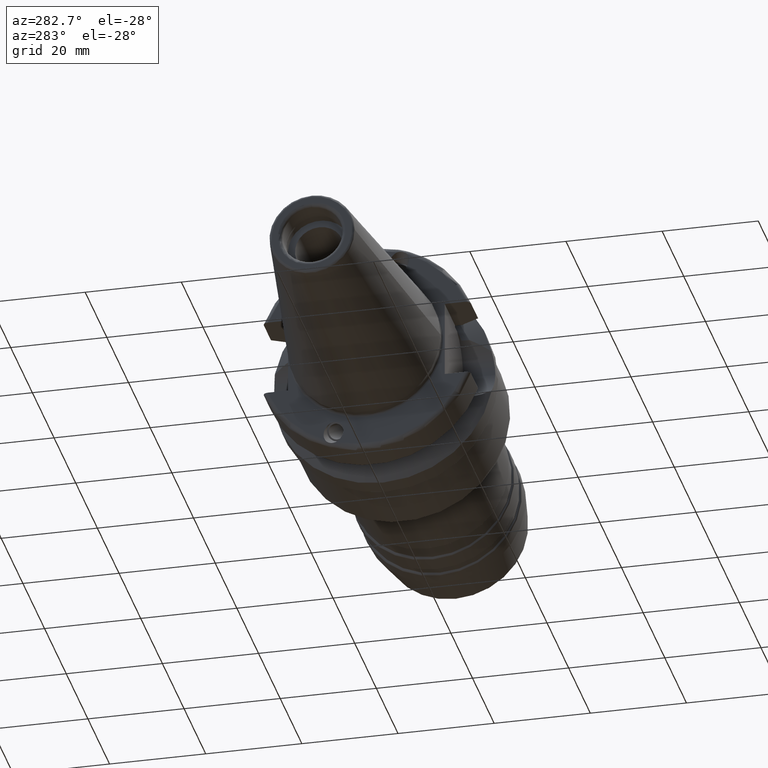
[diagram: clean part render]
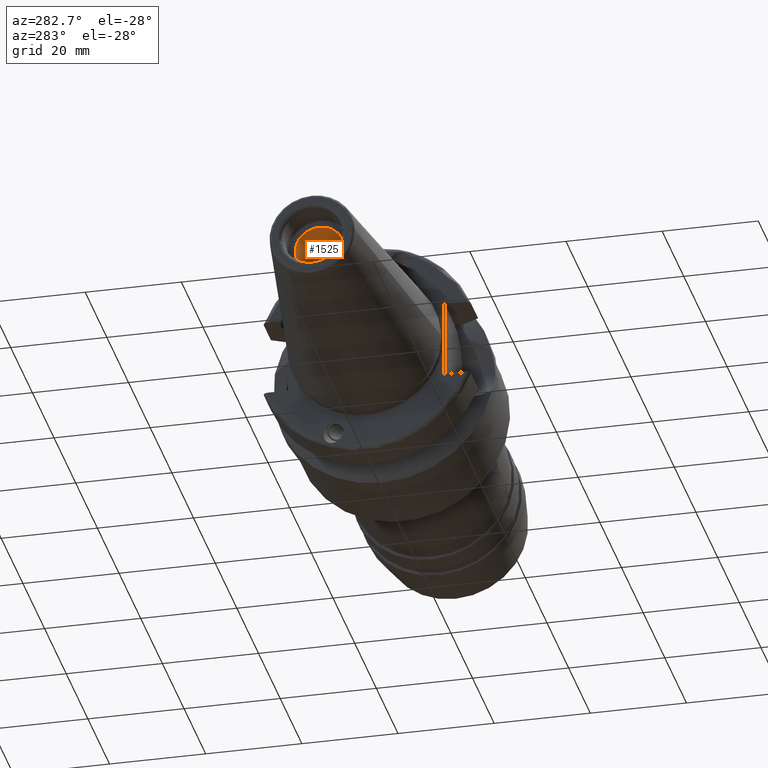
[diagram: same view with one face highlighted and labeled with its STEP entity id]
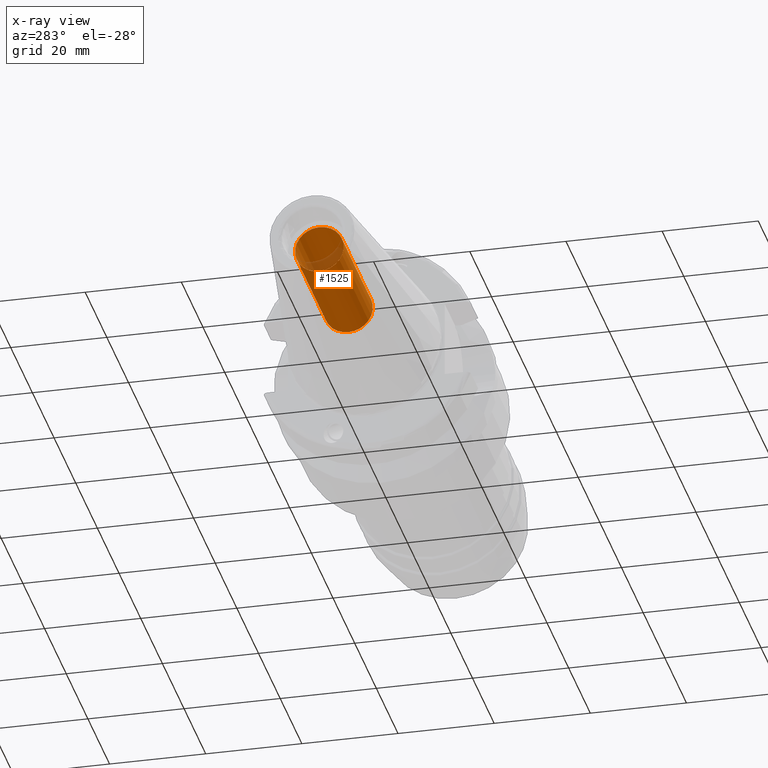
[diagram: x-ray of the same camera — body ghosted, the highlighted face saturated]
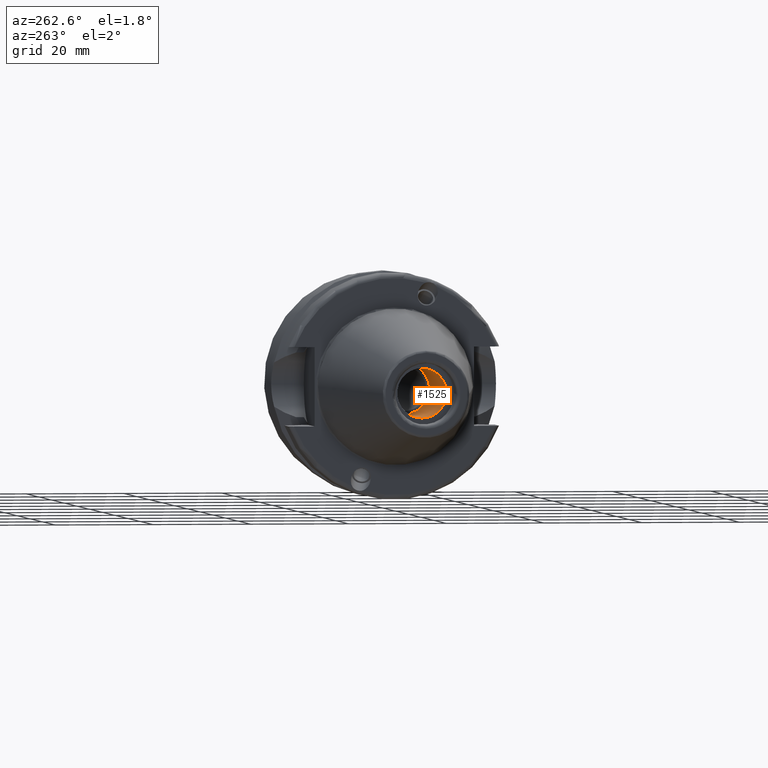
[diagram: same view with one face highlighted and labeled with its STEP entity id]
A machine part, auxiliary view. The second image highlights one B-rep face of the part: STEP entity #1525.
The next image is the same camera in x-ray: the body ghosted, the highlighted face saturated — about 9% of this face is hidden behind the body in this view.
A second angle (auxiliary view) of the same face is appended — the face is thin or edge-on in the first view.
In plain terms, the highlighted cylindrical surface (bore or boss wall) has radius 5.053 mm, axis along (-1, -0, 0).
Its self-contained STEP definition (entity closure, byte-faithful):
#158=LINE('',#2832,#231);
#231=VECTOR('',#2145,5.053);
#288=CYLINDRICAL_SURFACE('',#1732,5.053);
#357=FACE_OUTER_BOUND('',#459,.T.);
#459=EDGE_LOOP('',(#1251,#1252,#1253,#1254));
#568=CIRCLE('',#1731,5.053);
#569=CIRCLE('',#1733,5.053);
#700=VERTEX_POINT('',#2826);
#701=VERTEX_POINT('',#2830);
#896=EDGE_CURVE('',#700,#700,#568,.T.);
#898=EDGE_CURVE('',#701,#701,#569,.T.);
#899=EDGE_CURVE('',#701,#700,#158,.T.);
#1251=ORIENTED_EDGE('',*,*,#898,.F.);
#1252=ORIENTED_EDGE('',*,*,#899,.T.);
#1253=ORIENTED_EDGE('',*,*,#896,.F.);
#1254=ORIENTED_EDGE('',*,*,#899,.F.);
#1525=ADVANCED_FACE('',(#357),#288,.F.);
#1731=AXIS2_PLACEMENT_3D('',#2827,#2138,#2139);
#1732=AXIS2_PLACEMENT_3D('',#2829,#2141,#2142);
#1733=AXIS2_PLACEMENT_3D('',#2831,#2143,#2144);
#2138=DIRECTION('center_axis',(-1.,-1.62798202122572E-21,0.));
#2139=DIRECTION('ref_axis',(0.,0.,1.));
#2141=DIRECTION('center_axis',(-1.,-1.62798202122572E-21,0.));
#2142=DIRECTION('ref_axis',(0.,0.,1.));
#2143=DIRECTION('center_axis',(1.,1.62798202122572E-21,0.));
#2144=DIRECTION('ref_axis',(0.,0.,1.));
#2145=DIRECTION('',(1.,1.62798202122572E-21,0.));
#2826=CARTESIAN_POINT('',(-14.4,1.46289809907758E-15,-5.053));
#2827=CARTESIAN_POINT('Origin',(-14.4,2.08171212668674E-15,0.));
#2829=CARTESIAN_POINT('Origin',(-31.4,2.08168445099238E-15,0.));
#2830=CARTESIAN_POINT('',(-41.4,2.70048219878133E-15,-5.053));
#2831=CARTESIAN_POINT('Origin',(-41.4,2.08166817117217E-15,0.));
#2832=CARTESIAN_POINT('',(-31.4,1.46287042338322E-15,-5.053));